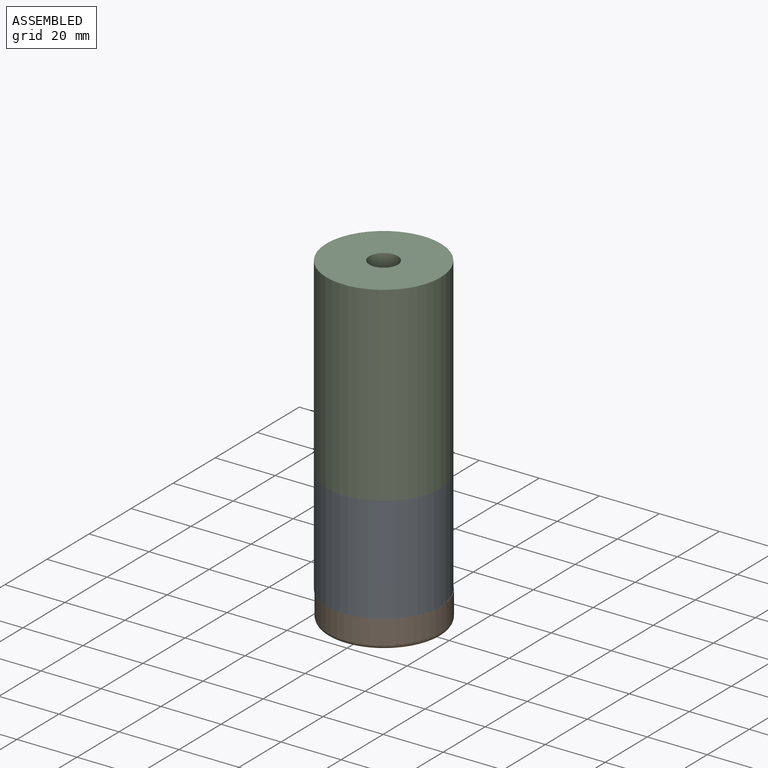
[diagram: assembled view]
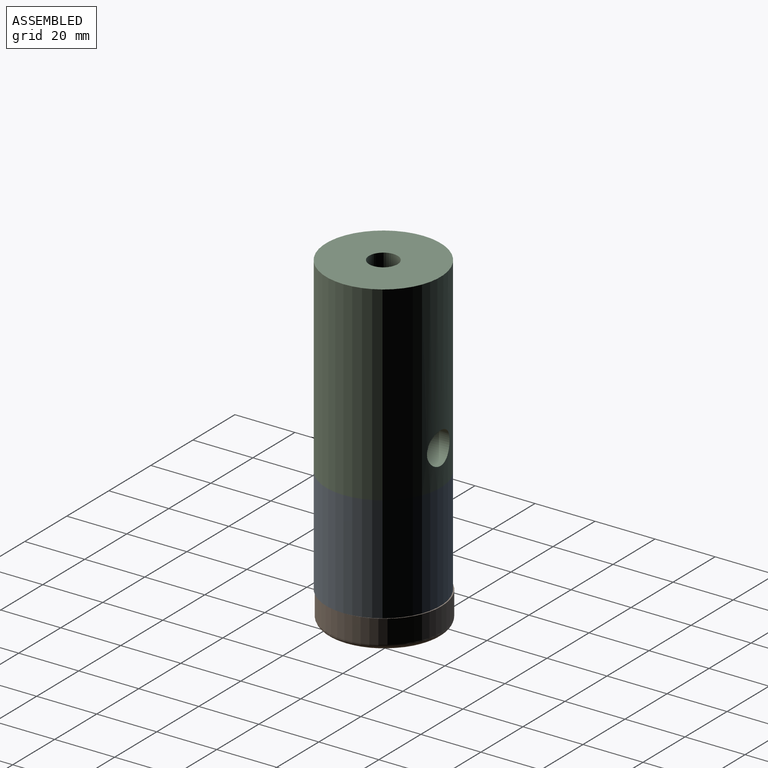
[diagram: assembled view, second angle]
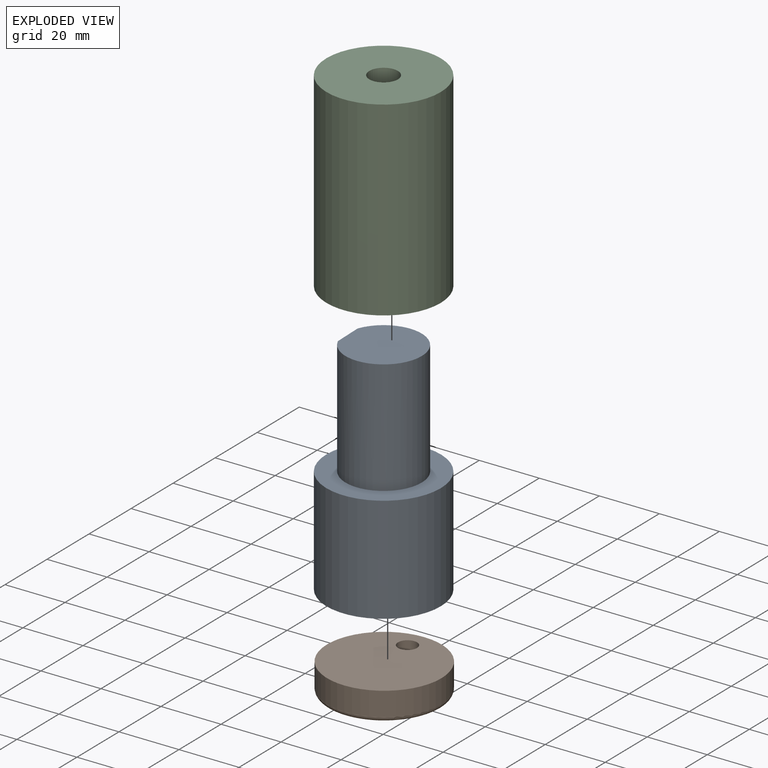
[diagram: exploded view]
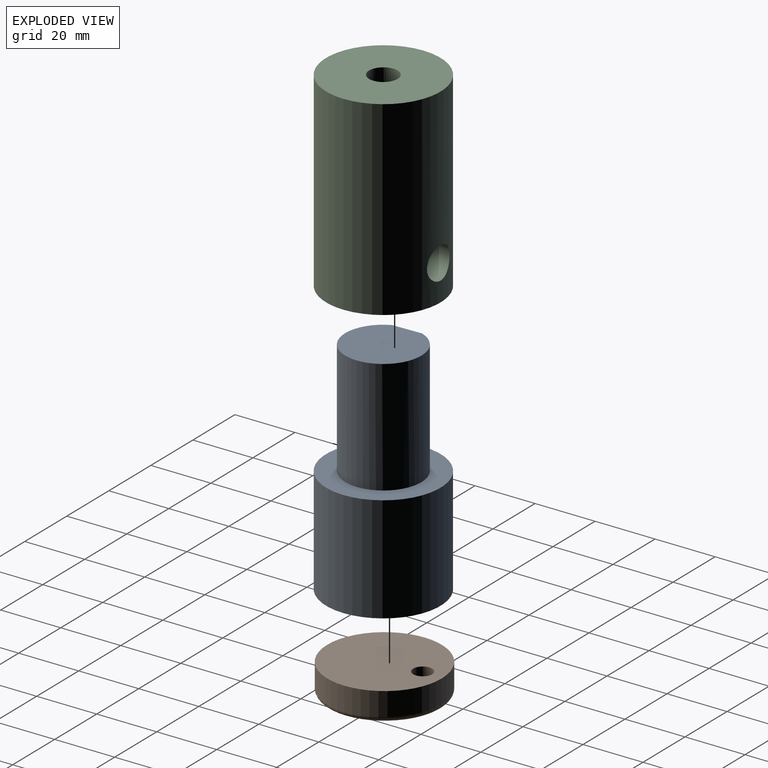
[diagram: exploded view, second angle]
ASSEMBLY  parts=3 mates=2
PART A: 9 faces, bbox 38.1x38.1x73.7 mm
  f0: cylinder r=12.7mm len=38.1mm, axis (0,0,1), area 2682mm2, adj f3,f4,f7,f8
  f1: cylinder r=19.05mm len=38.1mm, axis (0,0,1), area 4256.3mm2, adj f2,f3
  f2: plane 38.1x38.1mm, normal (0,0,-1), area 1108.4mm2, adj f1,f5
  f3: plane 38.1x38.1mm, normal (0,0,1), area 633.4mm2, adj f0,f1
  f4: plane 25.4x24.55mm, normal (0,0,1), area 500.2mm2, adj f0,f7
  f5: cylinder r=3.17mm len=12.7mm, axis (0,0,-1), area 253.4mm2, adj f2,f6
  f6: plane 6.35x6.35mm, normal (0,0,-1), area 31.7mm2, adj f5
  f7: plane 35.56x9.81mm, normal (-1,-0.03,0), area 348.9mm2, adj f0,f4,f8
  f8: plane 9.81x1.13mm, normal (0,0,1), area 6.5mm2, adj f0,f7
PART B: 5 faces, bbox 41.2x41.2x9.5 mm
  f0: cylinder r=19.05mm len=38.1mm, axis (0,0,1), area 942.5mm2, adj f2,f3
  f1: plane 34.8x34.8mm, normal (0,0,-1), area 919.4mm2, adj f3,f4
  f2: plane 38.1x38.1mm, normal (0,0,1), area 1108.4mm2, adj f0,f4
  f3: torus R=17.4mm, axis (0,0,1), area 300.6mm2, adj f0,f1
  f4: cylinder r=3.17mm len=9.53mm, axis (0,0,-1), area 190mm2, adj f1,f2
PART C: 8 faces, bbox 38.1x38.1x63.5 mm
  f0: cylinder r=19.05mm len=63.5mm, axis (0,0,1), area 7509.1mm2, adj f1,f2,f7
  f1: plane 38.1x38.1mm, normal (0,0,-1), area 493.1mm2, adj f0,f5
  f2: plane 38.1x38.1mm, normal (0,0,1), area 1068.8mm2, adj f0,f6
  f3: cylinder r=12.7mm len=36.45mm, axis (0,0,-1), area 2815.7mm2, adj f4,f5,f7
  f4: plane 25.4x25.4mm, normal (0,0,-1), area 435.5mm2, adj f3,f6
  f5: cone r=12.7mm half-angle=45deg, axis (0,0,-1), area 198.4mm2, adj f1,f3
  f6: cylinder r=4.76mm len=25.4mm, axis (0,0,1), area 760.1mm2, adj f2,f4
  f7: cylinder r=5.37mm len=10.74mm, axis (0,-1,0), area 221.1mm2, adj f0,f3
PLACE A t=(21.54,41.31,-14.73)mm
PLACE B t=(35.54,-8.91,-88.39)mm
PLACE C t=(-12.81,-21.45,10.67)mm
MATE fastened A.f0 <-> B.f2  axis (0,0,-1) through (-12.81,-21.45,-88.39)mm
MATE fastened A.f0 <-> C.f3  axis (0,0,1) through (-12.81,-21.45,-14.73)mm
